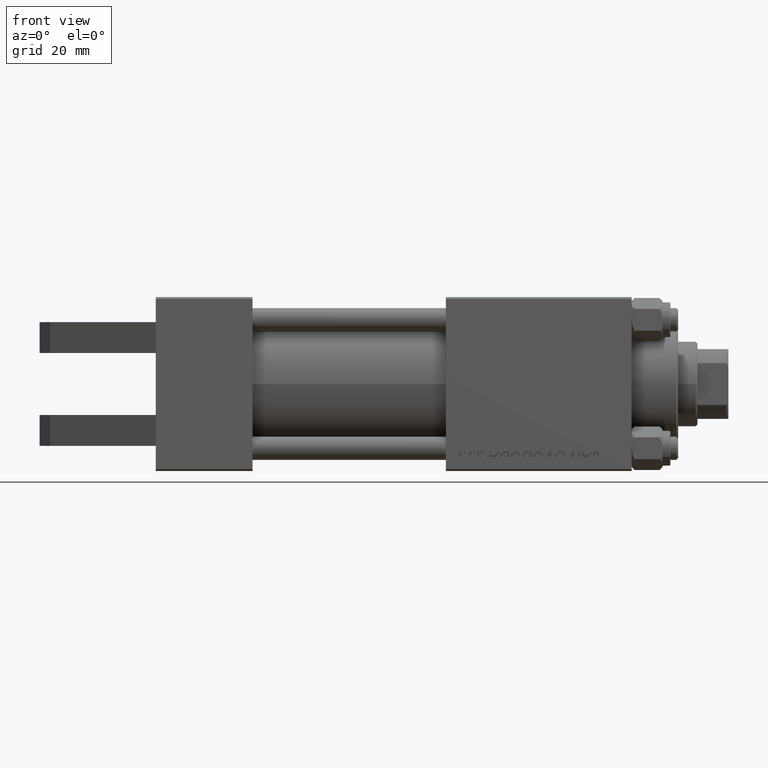
[diagram: clean part render]
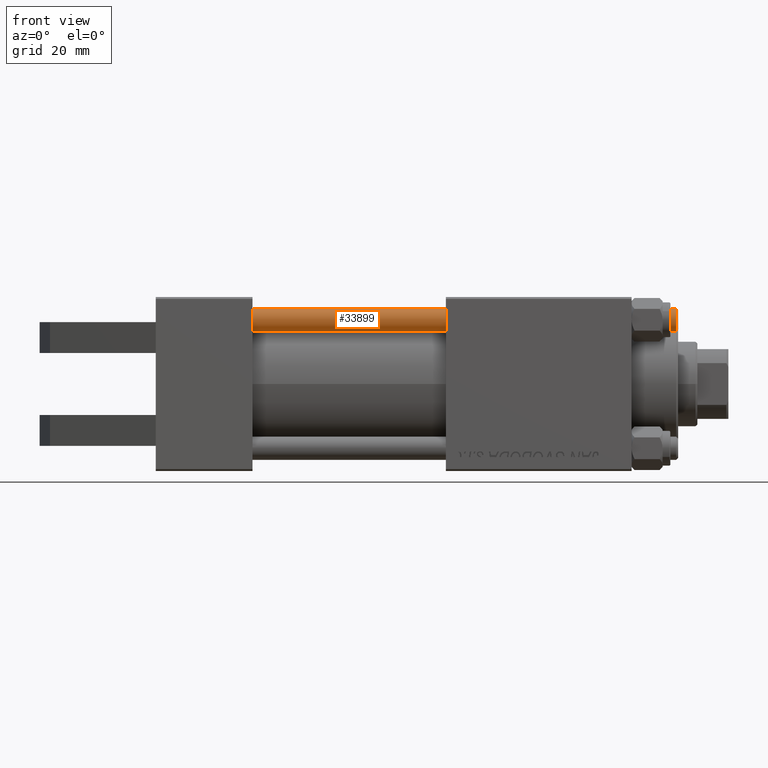
[diagram: same view with one face highlighted and labeled with its STEP entity id]
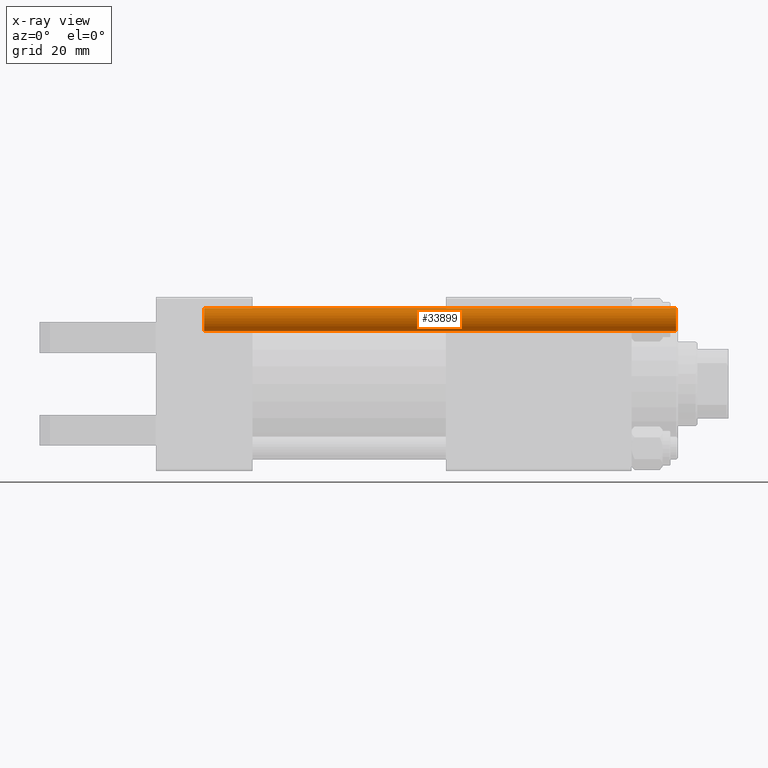
[diagram: x-ray of the same camera — body ghosted, the highlighted face saturated]
A machine part, front view. The second image highlights one B-rep face of the part: STEP entity #33899.
The next image is the same camera in x-ray: the body ghosted, the highlighted face saturated — about 0% of this face is hidden behind the body in this view.
In plain terms, the highlighted cylindrical surface (edge-blend (fillet) strip) has radius 3 mm, axis along (1, 0, 0).
Its self-contained STEP definition (entity closure, byte-faithful):
#550 = CARTESIAN_POINT ( 'NONE',  ( -3.000000000000000444, 0.000000000000000000, 0.5000000000000004441 ) ) ;
#1064 = CIRCLE ( 'NONE', #2697, 3.000000000000000444 ) ;
#1608 = DIRECTION ( 'NONE',  ( 1.000000000000000000, 0.000000000000000000, 0.000000000000000000 ) ) ;
#2494 = CARTESIAN_POINT ( 'NONE',  ( 3.000000000000000444, 3.673940397442060361E-16, 122.4999999999999858 ) ) ;
#2697 = AXIS2_PLACEMENT_3D ( 'NONE', #43567, #9156, #1608 ) ;
#3793 = EDGE_CURVE ( 'NONE', #38477, #21963, #1064, .T. ) ;
#3912 = VERTEX_POINT ( 'NONE', #550 ) ;
#8272 = EDGE_LOOP ( 'NONE', ( #45164, #15056, #49393, #30920 ) ) ;
#8534 = DIRECTION ( 'NONE',  ( -0.000000000000000000, -0.000000000000000000, -1.000000000000000000 ) ) ;
#8895 = DIRECTION ( 'NONE',  ( -0.000000000000000000, -0.000000000000000000, -1.000000000000000000 ) ) ;
#9156 = DIRECTION ( 'NONE',  ( 0.000000000000000000, 0.000000000000000000, -1.000000000000000000 ) ) ;
#10259 = VECTOR ( 'NONE', #8895, 1000.000000000000000 ) ;
#11758 = CARTESIAN_POINT ( 'NONE',  ( 0.000000000000000000, 0.000000000000000000, 0.5000000000000004441 ) ) ;
#12300 = FACE_OUTER_BOUND ( 'NONE', #8272, .T. ) ;
#12835 = CIRCLE ( 'NONE', #40922, 3.000000000000000444 ) ;
#13089 = CARTESIAN_POINT ( 'NONE',  ( -3.000000000000000444, 0.000000000000000000, 122.4999999999999858 ) ) ;
#14794 = DIRECTION ( 'NONE',  ( -0.000000000000000000, -0.000000000000000000, 1.000000000000000000 ) ) ;
#15056 = ORIENTED_EDGE ( 'NONE', *, *, #16273, .T. ) ;
#16273 = EDGE_CURVE ( 'NONE', #21963, #25500, #39304, .T. ) ;
#21963 = VERTEX_POINT ( 'NONE', #2494 ) ;
#22129 = EDGE_CURVE ( 'NONE', #25500, #3912, #12835, .T. ) ;
#24745 = CARTESIAN_POINT ( 'NONE',  ( 3.000000000000000444, 3.673940397442060361E-16, 123.0000000000000000 ) ) ;
#25500 = VERTEX_POINT ( 'NONE', #46852 ) ;
#26149 = CARTESIAN_POINT ( 'NONE',  ( -3.000000000000000444, 0.000000000000000000, 123.0000000000000000 ) ) ;
#27634 = CARTESIAN_POINT ( 'NONE',  ( 0.000000000000000000, 0.000000000000000000, 123.0000000000000000 ) ) ;
#28359 = VECTOR ( 'NONE', #31100, 1000.000000000000000 ) ;
#29134 = AXIS2_PLACEMENT_3D ( 'NONE', #27634, #8534, #36366 ) ;
#30870 = DIRECTION ( 'NONE',  ( 1.000000000000000000, 0.000000000000000000, 0.000000000000000000 ) ) ;
#30920 = ORIENTED_EDGE ( 'NONE', *, *, #41540, .F. ) ;
#31100 = DIRECTION ( 'NONE',  ( -0.000000000000000000, -0.000000000000000000, -1.000000000000000000 ) ) ;
#33899 = ADVANCED_FACE ( 'NONE', ( #12300 ), #47652, .T. ) ;
#36366 = DIRECTION ( 'NONE',  ( -1.000000000000000000, 0.000000000000000000, 0.000000000000000000 ) ) ;
#38477 = VERTEX_POINT ( 'NONE', #13089 ) ;
#39304 = LINE ( 'NONE', #24745, #10259 ) ;
#40922 = AXIS2_PLACEMENT_3D ( 'NONE', #11758, #14794, #30870 ) ;
#41540 = EDGE_CURVE ( 'NONE', #38477, #3912, #49005, .T. ) ;
#43567 = CARTESIAN_POINT ( 'NONE',  ( 0.000000000000000000, 0.000000000000000000, 122.4999999999999858 ) ) ;
#45164 = ORIENTED_EDGE ( 'NONE', *, *, #3793, .T. ) ;
#46852 = CARTESIAN_POINT ( 'NONE',  ( 3.000000000000000444, 3.673940397442060361E-16, 0.5000000000000004441 ) ) ;
#47652 = CYLINDRICAL_SURFACE ( 'NONE', #29134, 3.000000000000000444 ) ;
#49005 = LINE ( 'NONE', #26149, #28359 ) ;
#49393 = ORIENTED_EDGE ( 'NONE', *, *, #22129, .T. ) ;